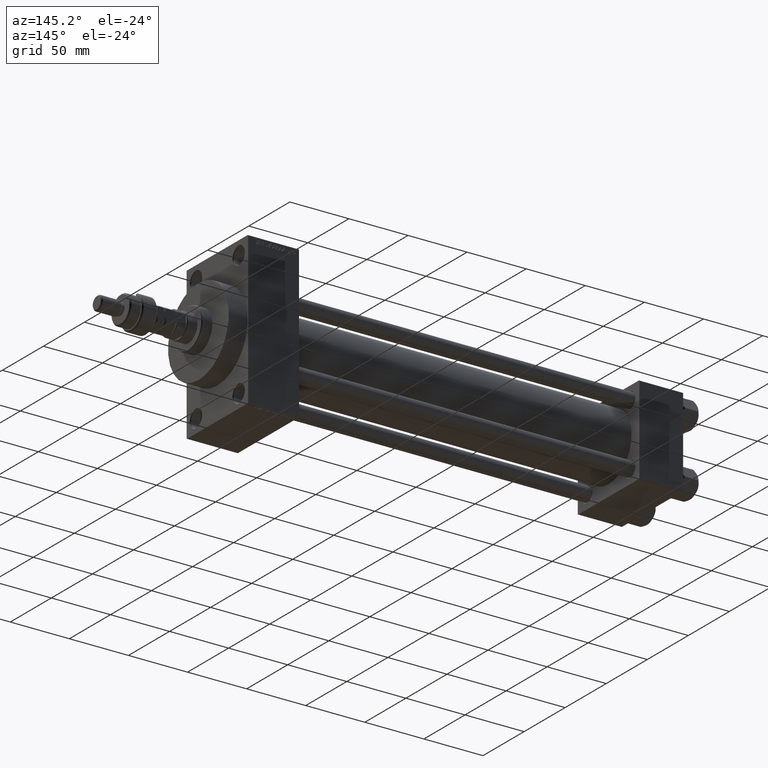
[diagram: clean part render]
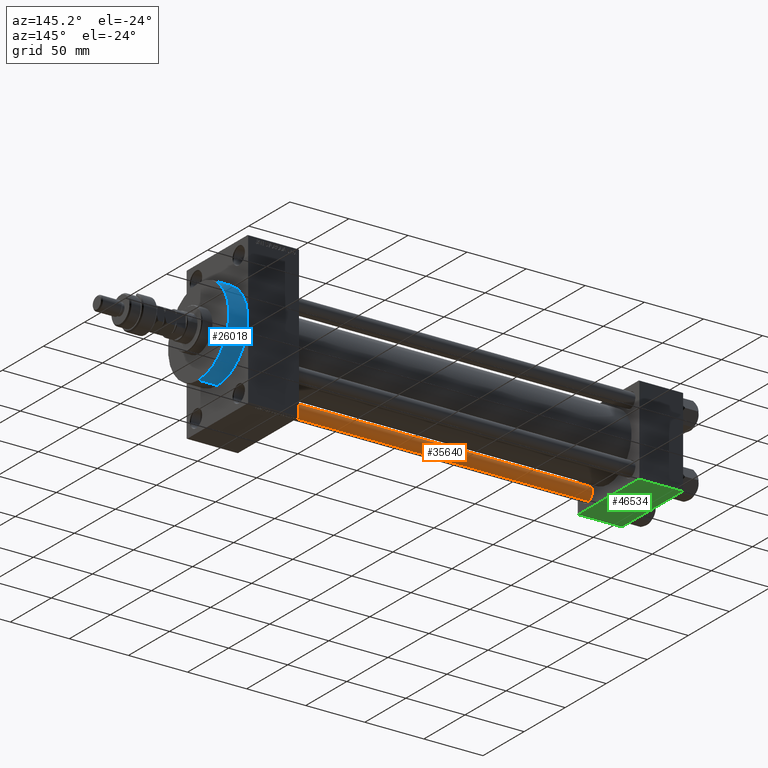
[diagram: same view with three faces highlighted in distinct colors, each labeled with its STEP entity id]
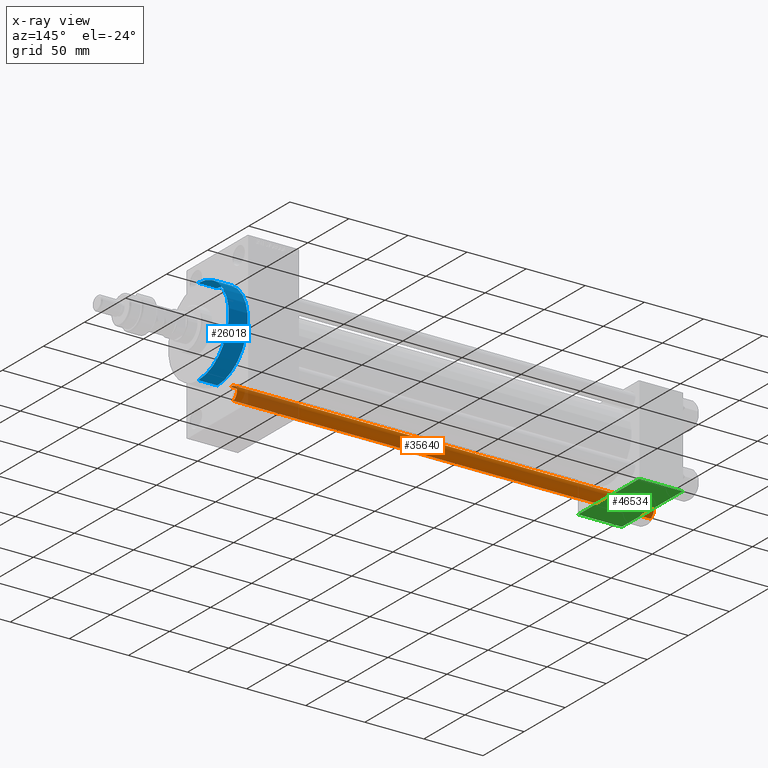
[diagram: x-ray of the same camera — body ghosted, the three highlighted faces saturated]
A machine part, auxiliary view with three faces highlighted in distinct colors.
The next image is the same camera in x-ray (body ghosted, the three faces saturated) — at least one of them is partly hidden behind the body in this view.
Their STEP definitions:

[orange] entity #35640 — the highlighted cylindrical surface (edge-blend (fillet) strip) has radius 6 mm, axis along (-1, 0, 0).
#246 = VERTEX_POINT ( 'NONE', #36399 ) ;
#1790 = CARTESIAN_POINT ( 'NONE',  ( 0.000000000000000000, 0.000000000000000000, 353.5000000000000000 ) ) ;
#2087 = VERTEX_POINT ( 'NONE', #33481 ) ;
#2610 = AXIS2_PLACEMENT_3D ( 'NONE', #30545, #18664, #11555 ) ;
#3059 = EDGE_CURVE ( 'NONE', #41217, #26595, #18924, .T. ) ;
#4841 = DIRECTION ( 'NONE',  ( 0.000000000000000000, 0.000000000000000000, -1.000000000000000000 ) ) ;
#5028 = ORIENTED_EDGE ( 'NONE', *, *, #40340, .T. ) ;
#5263 = LINE ( 'NONE', #12830, #39747 ) ;
#5792 = CARTESIAN_POINT ( 'NONE',  ( -6.000000000000000888, 0.000000000000000000, 353.5000000000000000 ) ) ;
#6250 = ORIENTED_EDGE ( 'NONE', *, *, #33178, .F. ) ;
#7291 = FACE_OUTER_BOUND ( 'NONE', #19732, .T. ) ;
#9788 = DIRECTION ( 'NONE',  ( -0.000000000000000000, -0.000000000000000000, -1.000000000000000000 ) ) ;
#11555 = DIRECTION ( 'NONE',  ( -1.000000000000000000, 0.000000000000000000, 0.000000000000000000 ) ) ;
#12830 = CARTESIAN_POINT ( 'NONE',  ( 6.000000000000000888, 7.347880794884120722E-16, 354.0000000000000000 ) ) ;
#16767 = VECTOR ( 'NONE', #9788, 1000.000000000000000 ) ;
#18129 = AXIS2_PLACEMENT_3D ( 'NONE', #1790, #4841, #24281 ) ;
#18664 = DIRECTION ( 'NONE',  ( -0.000000000000000000, -0.000000000000000000, -1.000000000000000000 ) ) ;
#18924 = CIRCLE ( 'NONE', #18129, 6.000000000000000888 ) ;
#19151 = CYLINDRICAL_SURFACE ( 'NONE', #2610, 6.000000000000000888 ) ;
#19732 = EDGE_LOOP ( 'NONE', ( #6250, #31697, #5028, #32378 ) ) ;
#20442 = DIRECTION ( 'NONE',  ( -0.000000000000000000, -0.000000000000000000, 1.000000000000000000 ) ) ;
#22135 = EDGE_CURVE ( 'NONE', #246, #2087, #34524, .T. ) ;
#24281 = DIRECTION ( 'NONE',  ( 1.000000000000000000, 0.000000000000000000, 0.000000000000000000 ) ) ;
#26595 = VERTEX_POINT ( 'NONE', #5792 ) ;
#28017 = LINE ( 'NONE', #40399, #16767 ) ;
#30545 = CARTESIAN_POINT ( 'NONE',  ( 0.000000000000000000, 0.000000000000000000, 354.0000000000000000 ) ) ;
#31697 = ORIENTED_EDGE ( 'NONE', *, *, #3059, .T. ) ;
#32080 = DIRECTION ( 'NONE',  ( 1.000000000000000000, 0.000000000000000000, 0.000000000000000000 ) ) ;
#32378 = ORIENTED_EDGE ( 'NONE', *, *, #22135, .T. ) ;
#33178 = EDGE_CURVE ( 'NONE', #41217, #2087, #5263, .T. ) ;
#33481 = CARTESIAN_POINT ( 'NONE',  ( 6.000000000000000888, 7.347880794884120722E-16, 0.5000000000000559552 ) ) ;
#34524 = CIRCLE ( 'NONE', #36966, 6.000000000000000888 ) ;
#35616 = CARTESIAN_POINT ( 'NONE',  ( 0.000000000000000000, 0.000000000000000000, 0.5000000000000559552 ) ) ;
#35640 = ADVANCED_FACE ( 'NONE', ( #7291 ), #19151, .T. ) ;
#36399 = CARTESIAN_POINT ( 'NONE',  ( -6.000000000000000888, 0.000000000000000000, 0.5000000000000559552 ) ) ;
#36966 = AXIS2_PLACEMENT_3D ( 'NONE', #35616, #20442, #32080 ) ;
#39747 = VECTOR ( 'NONE', #40141, 1000.000000000000000 ) ;
#40141 = DIRECTION ( 'NONE',  ( -0.000000000000000000, -0.000000000000000000, -1.000000000000000000 ) ) ;
#40340 = EDGE_CURVE ( 'NONE', #26595, #246, #28017, .T. ) ;
#40399 = CARTESIAN_POINT ( 'NONE',  ( -6.000000000000000888, 0.000000000000000000, 354.0000000000000000 ) ) ;
#41217 = VERTEX_POINT ( 'NONE', #44957 ) ;
#44957 = CARTESIAN_POINT ( 'NONE',  ( 6.000000000000000888, 7.347880794884120722E-16, 353.5000000000000000 ) ) ;

[blue] entity #26018 — the highlighted cylindrical surface (partial cylindrical patch) has radius 37 mm, axis along (-1, -0, -0).
#4416 = EDGE_LOOP ( 'NONE', ( #14657, #48707, #19960, #31920 ) ) ;
#5466 = CARTESIAN_POINT ( 'NONE',  ( 383.9999999999999432, 4.531193156845206793E-15, -37.00000000000000000 ) ) ;
#5964 = CYLINDRICAL_SURFACE ( 'NONE', #7214, 37.00000000000000000 ) ;
#7060 = VERTEX_POINT ( 'NONE', #49425 ) ;
#7214 = AXIS2_PLACEMENT_3D ( 'NONE', #17572, #48457, #43659 ) ;
#9815 = DIRECTION ( 'NONE',  ( -1.000000000000000000, -0.000000000000000000, -0.000000000000000000 ) ) ;
#11120 = DIRECTION ( 'NONE',  ( 0.000000000000000000, 0.000000000000000000, -1.000000000000000000 ) ) ;
#13621 = LINE ( 'NONE', #29047, #22686 ) ;
#13716 = CARTESIAN_POINT ( 'NONE',  ( 383.9999999999999432, 0.000000000000000000, 0.000000000000000000 ) ) ;
#14657 = ORIENTED_EDGE ( 'NONE', *, *, #20411, .F. ) ;
#16828 = DIRECTION ( 'NONE',  ( -1.000000000000000000, -0.000000000000000000, -0.000000000000000000 ) ) ;
#17572 = CARTESIAN_POINT ( 'NONE',  ( 383.9999999999999432, 0.000000000000000000, 0.000000000000000000 ) ) ;
#17638 = VECTOR ( 'NONE', #16828, 1000.000000000000000 ) ;
#18724 = CARTESIAN_POINT ( 'NONE',  ( 367.9999999999999432, 0.000000000000000000, 0.000000000000000000 ) ) ;
#19960 = ORIENTED_EDGE ( 'NONE', *, *, #49850, .T. ) ;
#20411 = EDGE_CURVE ( 'NONE', #40675, #25108, #40942, .T. ) ;
#21292 = DIRECTION ( 'NONE',  ( 0.000000000000000000, 0.000000000000000000, -1.000000000000000000 ) ) ;
#22686 = VECTOR ( 'NONE', #9815, 1000.000000000000000 ) ;
#23440 = CIRCLE ( 'NONE', #26680, 37.00000000000000000 ) ;
#25108 = VERTEX_POINT ( 'NONE', #35574 ) ;
#26018 = ADVANCED_FACE ( 'NONE', ( #32016 ), #5964, .T. ) ;
#26680 = AXIS2_PLACEMENT_3D ( 'NONE', #18724, #45797, #11120 ) ;
#29047 = CARTESIAN_POINT ( 'NONE',  ( 383.9999999999999432, 0.000000000000000000, 37.00000000000000000 ) ) ;
#31920 = ORIENTED_EDGE ( 'NONE', *, *, #47889, .F. ) ;
#31938 = DIRECTION ( 'NONE',  ( 1.000000000000000000, 0.000000000000000000, 0.000000000000000000 ) ) ;
#32014 = LINE ( 'NONE', #5466, #17638 ) ;
#32016 = FACE_OUTER_BOUND ( 'NONE', #4416, .T. ) ;
#33749 = VERTEX_POINT ( 'NONE', #43735 ) ;
#34575 = AXIS2_PLACEMENT_3D ( 'NONE', #13716, #31938, #21292 ) ;
#35574 = CARTESIAN_POINT ( 'NONE',  ( 383.9999999999999432, 0.000000000000000000, 37.00000000000000000 ) ) ;
#37972 = CARTESIAN_POINT ( 'NONE',  ( 383.9999999999999432, 4.531193156845206793E-15, -37.00000000000000000 ) ) ;
#40675 = VERTEX_POINT ( 'NONE', #37972 ) ;
#40942 = CIRCLE ( 'NONE', #34575, 37.00000000000000000 ) ;
#41419 = EDGE_CURVE ( 'NONE', #40675, #7060, #32014, .T. ) ;
#43659 = DIRECTION ( 'NONE',  ( 0.000000000000000000, 0.000000000000000000, 1.000000000000000000 ) ) ;
#43735 = CARTESIAN_POINT ( 'NONE',  ( 367.9999999999999432, 0.000000000000000000, 37.00000000000000000 ) ) ;
#45797 = DIRECTION ( 'NONE',  ( 1.000000000000000000, 0.000000000000000000, 0.000000000000000000 ) ) ;
#47889 = EDGE_CURVE ( 'NONE', #25108, #33749, #13621, .T. ) ;
#48457 = DIRECTION ( 'NONE',  ( -1.000000000000000000, -0.000000000000000000, -0.000000000000000000 ) ) ;
#48707 = ORIENTED_EDGE ( 'NONE', *, *, #41419, .T. ) ;
#49425 = CARTESIAN_POINT ( 'NONE',  ( 367.9999999999999432, 4.531193156845206793E-15, -37.00000000000000000 ) ) ;
#49850 = EDGE_CURVE ( 'NONE', #7060, #33749, #23440, .T. ) ;

[green] entity #46534 — the highlighted planar face has unit normal (0, 0, -1).
#803 = EDGE_LOOP ( 'NONE', ( #16075, #35545, #2417, #6161 ) ) ;
#1619 = CARTESIAN_POINT ( 'NONE',  ( 0.000000000000000000, 37.49999999999999289, -37.50000000000000000 ) ) ;
#2417 = ORIENTED_EDGE ( 'NONE', *, *, #30858, .T. ) ;
#6161 = ORIENTED_EDGE ( 'NONE', *, *, #10596, .T. ) ;
#9113 = DIRECTION ( 'NONE',  ( 0.000000000000000000, 9.251858538542972814E-17, -1.000000000000000000 ) ) ;
#10079 = DIRECTION ( 'NONE',  ( -1.000000000000000000, 0.000000000000000000, 0.000000000000000000 ) ) ;
#10391 = DIRECTION ( 'NONE',  ( 1.000000000000000000, 0.000000000000000000, 0.000000000000000000 ) ) ;
#10596 = EDGE_CURVE ( 'NONE', #29315, #20632, #33099, .T. ) ;
#11207 = EDGE_CURVE ( 'NONE', #30606, #44884, #25311, .T. ) ;
#13025 = VECTOR ( 'NONE', #22761, 1000.000000000000000 ) ;
#16075 = ORIENTED_EDGE ( 'NONE', *, *, #16456, .F. ) ;
#16456 = EDGE_CURVE ( 'NONE', #30606, #20632, #16775, .T. ) ;
#16775 = LINE ( 'NONE', #1619, #17468 ) ;
#17468 = VECTOR ( 'NONE', #48155, 1000.000000000000000 ) ;
#18001 = CARTESIAN_POINT ( 'NONE',  ( 0.000000000000000000, -37.00000000000002132, -37.50000000000000711 ) ) ;
#20632 = VERTEX_POINT ( 'NONE', #18001 ) ;
#22761 = DIRECTION ( 'NONE',  ( 0.000000000000000000, -1.000000000000000000, -9.251858538542972814E-17 ) ) ;
#23206 = VECTOR ( 'NONE', #10079, 1000.000000000000000 ) ;
#24028 = PLANE ( 'NONE',  #41223 ) ;
#24997 = CARTESIAN_POINT ( 'NONE',  ( 0.000000000000000000, -37.00000000000002132, -37.50000000000000711 ) ) ;
#25311 = LINE ( 'NONE', #36955, #40914 ) ;
#29315 = VERTEX_POINT ( 'NONE', #40612 ) ;
#30606 = VERTEX_POINT ( 'NONE', #45354 ) ;
#30858 = EDGE_CURVE ( 'NONE', #44884, #29315, #44800, .T. ) ;
#32380 = CARTESIAN_POINT ( 'NONE',  ( 37.00000000000000000, 37.49999999999999289, -37.50000000000000000 ) ) ;
#33099 = LINE ( 'NONE', #24997, #23206 ) ;
#35545 = ORIENTED_EDGE ( 'NONE', *, *, #11207, .T. ) ;
#36955 = CARTESIAN_POINT ( 'NONE',  ( 37.00000000000000000, 36.99999999999997868, -37.50000000000000000 ) ) ;
#37693 = CARTESIAN_POINT ( 'NONE',  ( 37.00000000000000000, 37.49999999999999289, -37.50000000000000000 ) ) ;
#40612 = CARTESIAN_POINT ( 'NONE',  ( 37.00000000000000000, -37.00000000000002132, -37.50000000000000711 ) ) ;
#40914 = VECTOR ( 'NONE', #10391, 1000.000000000000000 ) ;
#41223 = AXIS2_PLACEMENT_3D ( 'NONE', #32380, #9113, #47326 ) ;
#42257 = CARTESIAN_POINT ( 'NONE',  ( 37.00000000000000000, 36.99999999999997868, -37.50000000000000000 ) ) ;
#44800 = LINE ( 'NONE', #37693, #13025 ) ;
#44884 = VERTEX_POINT ( 'NONE', #42257 ) ;
#45354 = CARTESIAN_POINT ( 'NONE',  ( 0.000000000000000000, 36.99999999999997868, -37.50000000000000000 ) ) ;
#46534 = ADVANCED_FACE ( 'NONE', ( #48323 ), #24028, .T. ) ;
#47326 = DIRECTION ( 'NONE',  ( 0.000000000000000000, 1.000000000000000000, 9.251858538542972814E-17 ) ) ;
#48155 = DIRECTION ( 'NONE',  ( 0.000000000000000000, -1.000000000000000000, -9.251858538542972814E-17 ) ) ;
#48323 = FACE_OUTER_BOUND ( 'NONE', #803, .T. ) ;